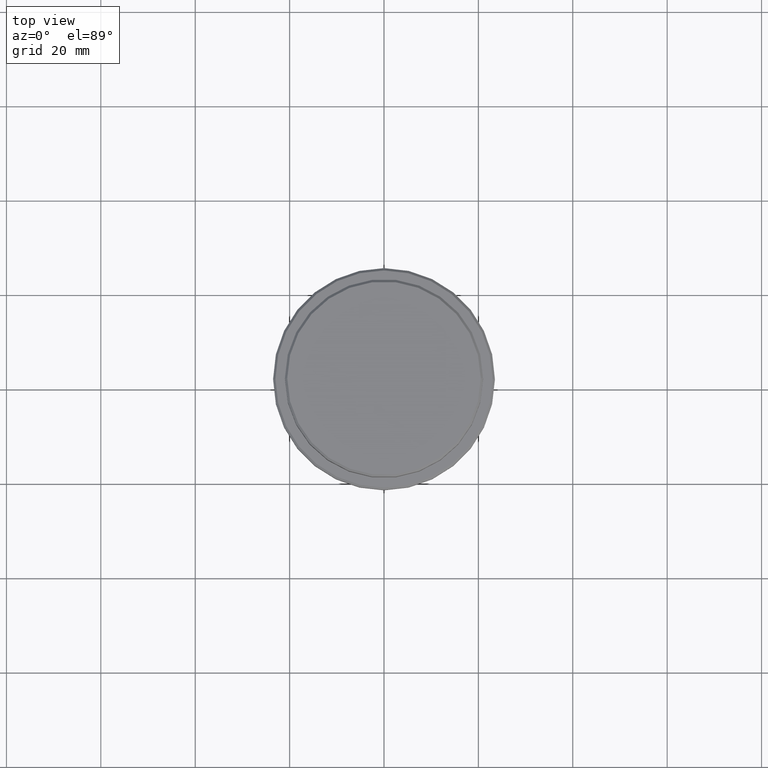
[diagram: clean part render]
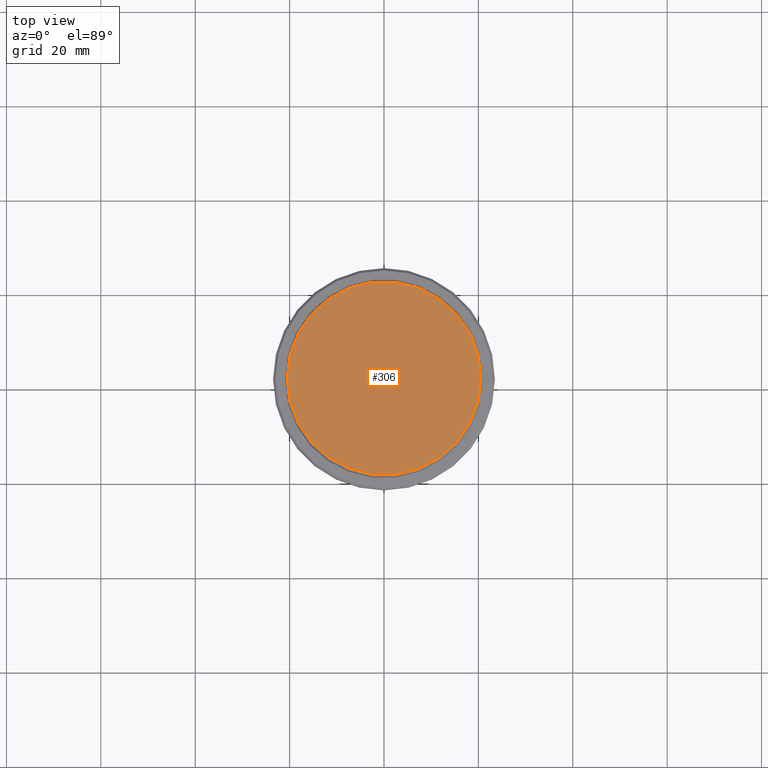
[diagram: same view with one face highlighted and labeled with its STEP entity id]
A machine part, top view. The second image highlights one B-rep face of the part: STEP entity #306.
In plain terms, the highlighted planar face has unit normal (0, -0, 1).
Its self-contained STEP definition (entity closure, byte-faithful):
#46 = VERTEX_POINT ( 'NONE', #234 ) ;
#54 = CARTESIAN_POINT ( 'NONE',  ( 0.000000000000000000, 0.000000000000000000, 0.000000000000000000 ) ) ;
#161 = EDGE_CURVE ( 'NONE', #46, #1106, #883, .T. ) ;
#205 = PLANE ( 'NONE',  #440 ) ;
#206 = EDGE_LOOP ( 'NONE', ( #1261, #1379 ) ) ;
#221 = AXIS2_PLACEMENT_3D ( 'NONE', #243, #1114, #451 ) ;
#234 = CARTESIAN_POINT ( 'NONE',  ( 20.49999999999996447, 2.541142108230755902E-15, 0.000000000000000000 ) ) ;
#243 = CARTESIAN_POINT ( 'NONE',  ( 0.000000000000000000, 0.000000000000000000, 0.000000000000000000 ) ) ;
#273 = CIRCLE ( 'NONE', #221, 20.49999999999996447 ) ;
#284 = DIRECTION ( 'NONE',  ( 0.000000000000000000, -0.000000000000000000, 1.000000000000000000 ) ) ;
#306 = ADVANCED_FACE ( 'NONE', ( #635 ), #205, .T. ) ;
#360 = CARTESIAN_POINT ( 'NONE',  ( 0.000000000000000000, 0.000000000000000000, 0.000000000000000000 ) ) ;
#372 = AXIS2_PLACEMENT_3D ( 'NONE', #360, #803, #1237 ) ;
#417 = CARTESIAN_POINT ( 'NONE',  ( -20.49999999999996447, 0.000000000000000000, 0.000000000000000000 ) ) ;
#440 = AXIS2_PLACEMENT_3D ( 'NONE', #54, #284, #1272 ) ;
#451 = DIRECTION ( 'NONE',  ( 1.000000000000000000, 0.000000000000000000, 0.000000000000000000 ) ) ;
#635 = FACE_OUTER_BOUND ( 'NONE', #206, .T. ) ;
#803 = DIRECTION ( 'NONE',  ( -0.000000000000000000, -0.000000000000000000, 1.000000000000000000 ) ) ;
#883 = CIRCLE ( 'NONE', #372, 20.49999999999996447 ) ;
#1106 = VERTEX_POINT ( 'NONE', #417 ) ;
#1114 = DIRECTION ( 'NONE',  ( -0.000000000000000000, -0.000000000000000000, 1.000000000000000000 ) ) ;
#1237 = DIRECTION ( 'NONE',  ( 1.000000000000000000, 0.000000000000000000, 0.000000000000000000 ) ) ;
#1241 = EDGE_CURVE ( 'NONE', #1106, #46, #273, .T. ) ;
#1261 = ORIENTED_EDGE ( 'NONE', *, *, #1241, .T. ) ;
#1272 = DIRECTION ( 'NONE',  ( 1.000000000000000000, 0.000000000000000000, 0.000000000000000000 ) ) ;
#1379 = ORIENTED_EDGE ( 'NONE', *, *, #161, .T. ) ;